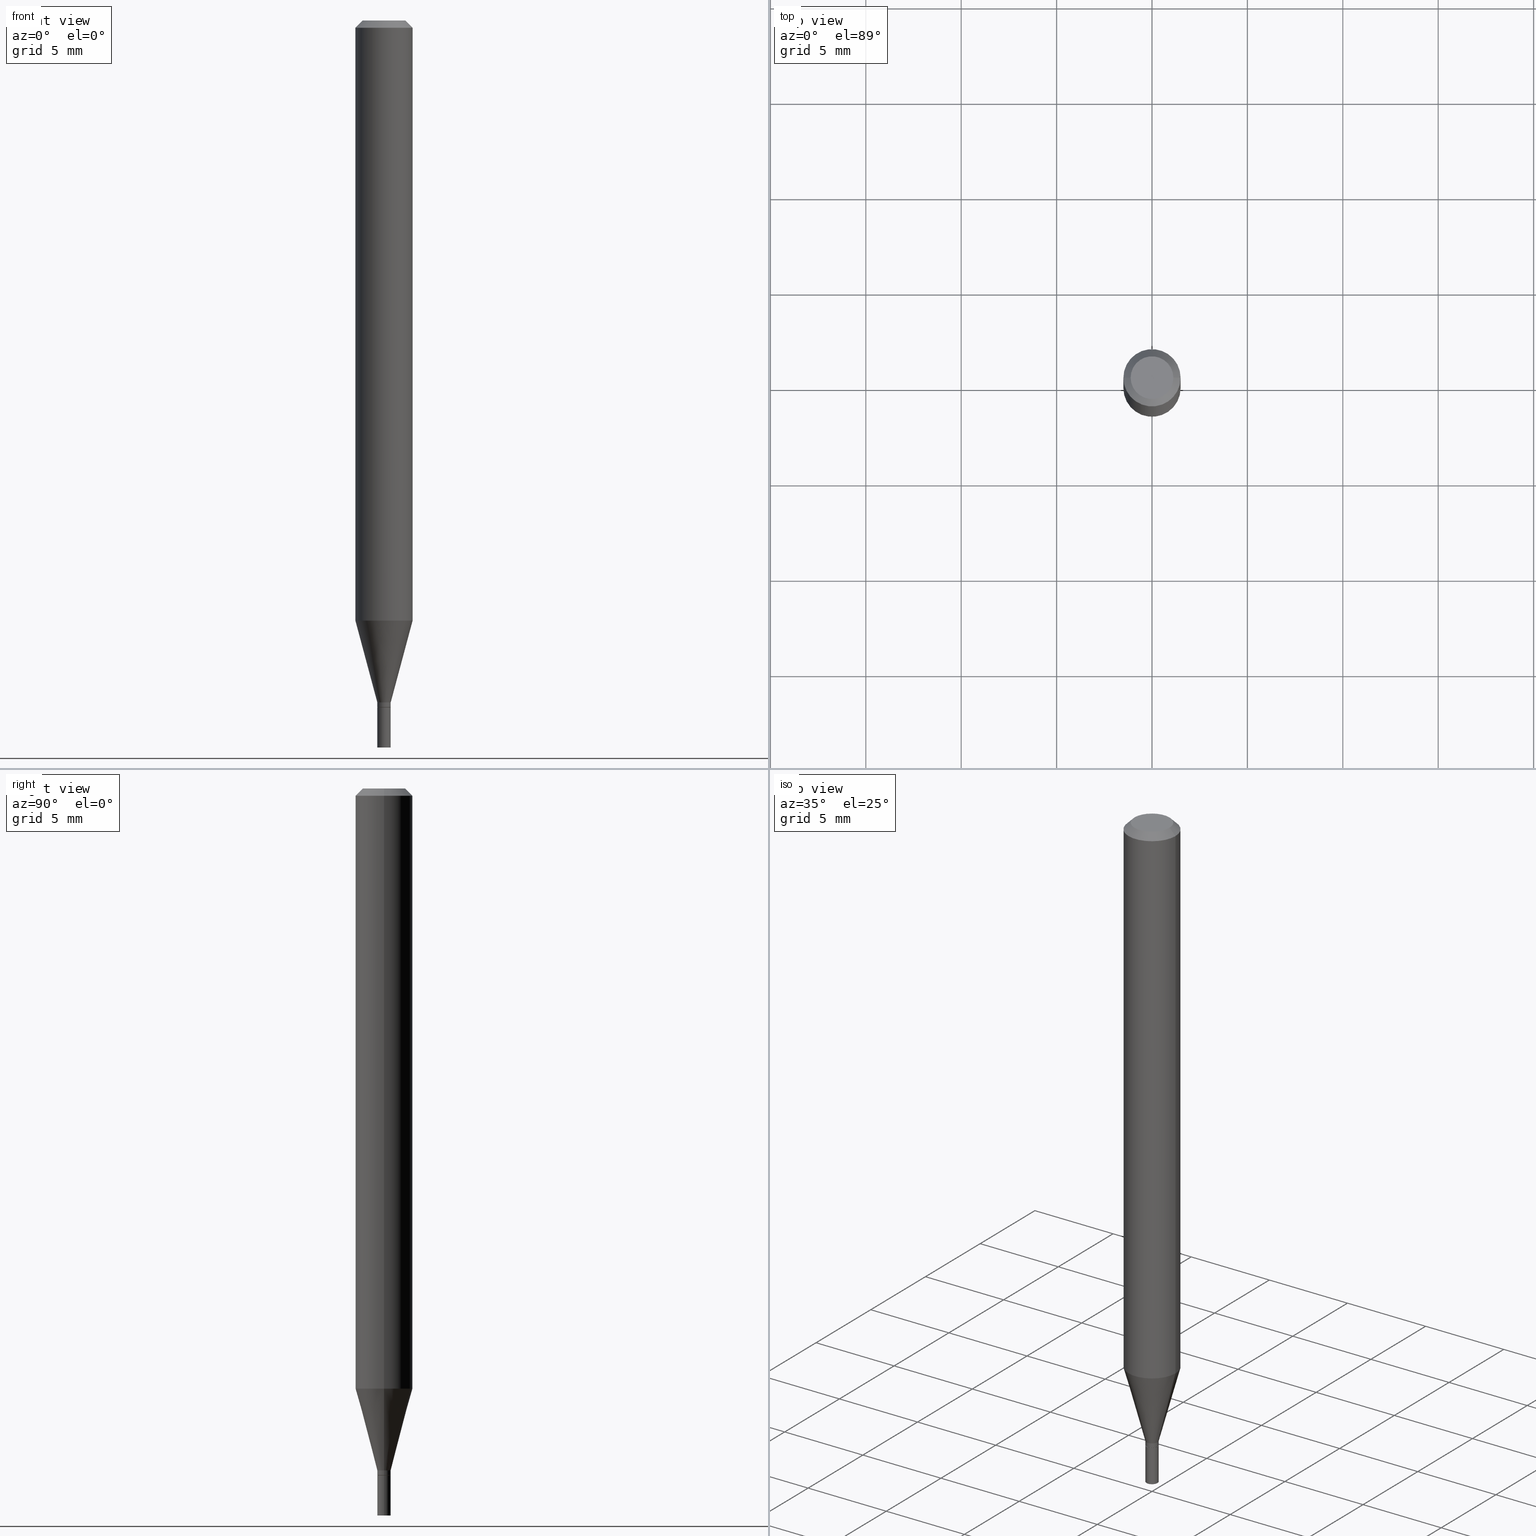
[diagram: canonical four-view strip — front | top / right | iso, engineering-drawing reading convention]
A machine part, canonical four-view strip (front | top / right | iso — engineering-drawing reading convention). The complete STEP part file that produces these views, byte-faithful:
ISO-10303-21;
HEADER;
FILE_DESCRIPTION (( 'STEP AP203' ),
    '1' );
FILE_NAME ('02354.STEP',
    '2024-03-18T20:13:08',
    ( '' ),
    ( '' ),
    'SwSTEP 2.0',
    'SolidWorks 2023',
    '' );
FILE_SCHEMA (( 'CONFIG_CONTROL_DESIGN' ));
ENDSEC;

DATA;
#1 = APPROVAL_STATUS ( 'not_yet_approved' ) ;
#2 = CC_DESIGN_DATE_AND_TIME_ASSIGNMENT ( #345, #303, ( #188 ) ) ;
#3 = CIRCLE ( 'NONE', #176, 0.01380000000000019232 ) ;
#4 = LOCAL_TIME ( 16, 13, 8.000000000000000000, #155 ) ;
#5 = CARTESIAN_POINT ( 'NONE',  ( 0.000000000000000000, 0.000000000000000000, 0.000000000000000000 ) ) ;
#6 = DATE_AND_TIME ( #330, #77 ) ;
#7 = CARTESIAN_POINT ( 'NONE',  ( 0.01329999999999999932, -5.041349905155618377E-15, -1.417300000000000226 ) ) ;
#8 = CARTESIAN_POINT ( 'NONE',  ( 3.465962939006194880E-29, -4.948476501542391231E-15, -1.417300000000000226 ) ) ;
#9 = CONICAL_SURFACE ( 'NONE', #369, 0.01329999999999999932, 0.7853981633974739252 ) ;
#10 = VERTEX_POINT ( 'NONE', #284 ) ;
#11 = ORIENTED_EDGE ( 'NONE', *, *, #148, .F. ) ;
#12 = SECURITY_CLASSIFICATION_LEVEL ( 'unclassified' ) ;
#13 = EDGE_CURVE ( 'NONE', #451, #388, #288, .T. ) ;
#14 = VERTEX_POINT ( 'NONE', #352 ) ;
#15 = COORDINATED_UNIVERSAL_TIME_OFFSET ( 5, 0, .BEHIND. ) ;
#16 = CIRCLE ( 'NONE', #313, 0.01379999999999999977 ) ;
#17 = ORIENTED_EDGE ( 'NONE', *, *, #327, .F. ) ;
#18 = EDGE_CURVE ( 'NONE', #451, #10, #421, .T. ) ;
#19 = FACE_OUTER_BOUND ( 'NONE', #449, .T. ) ;
#20 = CIRCLE ( 'NONE', #39, 0.01329999999999999932 ) ;
#21 = CARTESIAN_POINT ( 'NONE',  ( -2.672865154728371978E-45, 3.816143058285937292E-31, 1.092986812167916054E-16 ) ) ;
#22 = DIRECTION ( 'NONE',  ( 1.000000000000000000, -6.982962677686266711E-15, 4.876176775795936353E-29 ) ) ;
#23 = PLANE ( 'NONE',  #339 ) ;
#24 = ADVANCED_FACE ( 'NONE', ( #95 ), #353, .T. ) ;
#25 = ORIENTED_EDGE ( 'NONE', *, *, #112, .F. ) ;
#26 = CARTESIAN_POINT ( 'NONE',  ( -0.01380000000000019232, -4.814459346217411032E-15, -1.407000000000000028 ) ) ;
#27 = ORIENTED_EDGE ( 'NONE', *, *, #109, .F. ) ;
#28 = EDGE_CURVE ( 'NONE', #163, #192, #131, .T. ) ;
#29 = AXIS2_PLACEMENT_3D ( 'NONE', #175, #91, #279 ) ;
#30 = CIRCLE ( 'NONE', #96, 0.01379999999999992344 ) ;
#31 = CC_DESIGN_APPROVAL ( #42, ( #409 ) ) ;
#32 = CARTESIAN_POINT ( 'NONE',  ( -0.01380000000000005875, 9.805489753489424308E-17, -6.788130424551798647E-31 ) ) ;
#33 = FACE_OUTER_BOUND ( 'NONE', #90, .T. ) ;
#34 = LINE ( 'NONE', #437, #152 ) ;
#35 = CARTESIAN_POINT ( 'NONE',  ( 3.464740204603102639E-29, -4.946730760872969728E-15, -1.416800000000000281 ) ) ;
#36 = PERSON_AND_ORGANIZATION ( #248, #255 ) ;
#37 = CALENDAR_DATE ( 2024, 18, 3 ) ;
#38 = FACE_OUTER_BOUND ( 'NONE', #245, .T. ) ;
#39 = AXIS2_PLACEMENT_3D ( 'NONE', #334, #328, #408 ) ;
#40 = CARTESIAN_POINT ( 'NONE',  ( 0.01380000000000019232, -5.008879128704377621E-15, -1.407000000000000028 ) ) ;
#41 = APPLICATION_PROTOCOL_DEFINITION ( 'international standard', 'config_control_design', 1994, #366 ) ;
#42 = APPROVAL ( #1, 'UNSPECIFIED' ) ;
#43 = ORIENTED_EDGE ( 'NONE', *, *, #223, .F. ) ;
#44 = DATE_AND_TIME ( #341, #460 ) ;
#45 = VECTOR ( 'NONE', #178, 39.37007874015748143 ) ;
#46 = ADVANCED_FACE ( 'NONE', ( #458 ), #331, .T. ) ;
#47 = ORIENTED_EDGE ( 'NONE', *, *, #86, .T. ) ;
#48 = ORIENTED_EDGE ( 'NONE', *, *, #18, .F. ) ;
#49 = PERSON_AND_ORGANIZATION_ROLE ( 'creator' ) ;
#50 = PRODUCT_RELATED_PRODUCT_CATEGORY ( 'detail', '', ( #293 ) ) ;
#51 = ORIENTED_EDGE ( 'NONE', *, *, #305, .T. ) ;
#52 = AXIS2_PLACEMENT_3D ( 'NONE', #314, #171, #174 ) ;
#53 = APPROVAL_PERSON_ORGANIZATION ( #222, #70, #336 ) ;
#54 = ORIENTED_EDGE ( 'NONE', *, *, #13, .F. ) ;
#55 = ADVANCED_FACE ( 'NONE', ( #456 ), #127, .T. ) ;
#56 = DIRECTION ( 'NONE',  ( 1.000000000000000000, -6.982962677686234367E-15, 0.000000000000000000 ) ) ;
#57 = CARTESIAN_POINT ( 'NONE',  ( 0.000000000000000000, 0.000000000000000000, 0.000000000000000000 ) ) ;
#58 = AXIS2_PLACEMENT_3D ( 'NONE', #57, #207, #22 ) ;
#59 = AXIS2_PLACEMENT_3D ( 'NONE', #21, #129, #98 ) ;
#60 = DIRECTION ( 'NONE',  ( 1.000000000000000000, -6.982962677686265922E-15, 4.876176775795935793E-29 ) ) ;
#61 = DIRECTION ( 'NONE',  ( -2.445468806185136597E-29, 3.491481338843145583E-15, 1.000000000000000000 ) ) ;
#62 = UNCERTAINTY_MEASURE_WITH_UNIT (LENGTH_MEASURE( 1.000000000000000082E-05 ), #259, 'distance_accuracy_value', 'NONE');
#63 = CARTESIAN_POINT ( 'NONE',  ( 3.465962939006194880E-29, -4.948476501542391231E-15, -1.417300000000000226 ) ) ;
#64 = ORIENTED_EDGE ( 'NONE', *, *, #204, .F. ) ;
#65 = LINE ( 'NONE', #94, #126 ) ;
#66 = LINE ( 'NONE', #213, #45 ) ;
#67 = AXIS2_PLACEMENT_3D ( 'NONE', #212, #422, #316 ) ;
#68 = DIRECTION ( 'NONE',  ( 1.000000000000000000, -6.982962677686234367E-15, 0.000000000000000000 ) ) ;
#69 = DIRECTION ( 'NONE',  ( 1.000000000000000000, -6.982962677686265922E-15, 4.876176775795935793E-29 ) ) ;
#70 = APPROVAL ( #370, 'UNSPECIFIED' ) ;
#71 =( LENGTH_UNIT ( ) NAMED_UNIT ( * ) SI_UNIT ( $, .METRE. ) );
#72 = DIRECTION ( 'NONE',  ( 1.000000000000000000, -6.982962677686266711E-15, 0.000000000000000000 ) ) ;
#73 = FACE_OUTER_BOUND ( 'NONE', #234, .T. ) ;
#74 = AXIS2_PLACEMENT_3D ( 'NONE', #133, #61, #281 ) ;
#75 = VECTOR ( 'NONE', #247, 39.37007874015748143 ) ;
#76 = APPROVAL_ROLE ( '' ) ;
#77 = LOCAL_TIME ( 16, 13, 8.000000000000000000, #180 ) ;
#78 = DIRECTION ( 'NONE',  ( 1.000000000000000000, -6.982962677686266711E-15, 0.000000000000000000 ) ) ;
#79 = DIRECTION ( 'NONE',  ( -2.445468806185136597E-29, 3.491481338843145583E-15, 1.000000000000000000 ) ) ;
#80 = VECTOR ( 'NONE', #425, 39.37007874015748143 ) ;
#81 = CONICAL_SURFACE ( 'NONE', #380, 0.05904999999999999832, 0.7853981633974447263 ) ;
#82 = CC_DESIGN_PERSON_AND_ORGANIZATION_ASSIGNMENT ( #120, #193, ( #188 ) ) ;
#83 = ORIENTED_EDGE ( 'NONE', *, *, #355, .T. ) ;
#84 = ORIENTED_EDGE ( 'NONE', *, *, #172, .F. ) ;
#85 = ORIENTED_EDGE ( 'NONE', *, *, #376, .F. ) ;
#86 = EDGE_CURVE ( 'NONE', #14, #124, #173, .T. ) ;
#87 = ORIENTED_EDGE ( 'NONE', *, *, #148, .T. ) ;
#88 = VECTOR ( 'NONE', #102, 39.37007874015748143 ) ;
#89 = CONICAL_SURFACE ( 'NONE', #299, 0.01380000000000019232, 0.2617993877991501850 ) ;
#90 = EDGE_LOOP ( 'NONE', ( #170, #442 ) ) ;
#91 = DIRECTION ( 'NONE',  ( -2.445468806185136597E-29, 3.491481338843145583E-15, 1.000000000000000000 ) ) ;
#92 = FACE_OUTER_BOUND ( 'NONE', #410, .T. ) ;
#93 = DIRECTION ( 'NONE',  ( 1.000000000000000000, -6.982962677686265922E-15, 4.876176775795935793E-29 ) ) ;
#94 = CARTESIAN_POINT ( 'NONE',  ( -0.01379999999999999977, 9.805489753489382399E-17, -6.788130424551770621E-31 ) ) ;
#95 = FACE_OUTER_BOUND ( 'NONE', #298, .T. ) ;
#96 = AXIS2_PLACEMENT_3D ( 'NONE', #257, #262, #372 ) ;
#97 = CC_DESIGN_APPROVAL ( #304, ( #188 ) ) ;
#98 = DIRECTION ( 'NONE',  ( 1.000000000000000000, -6.982962677686265922E-15, 4.888540261209747396E-29 ) ) ;
#99 = CARTESIAN_POINT ( 'NONE',  ( 0.01329999999999999932, -5.041349905155618377E-15, -1.417300000000000226 ) ) ;
#100 = ADVANCED_FACE ( 'NONE', ( #199 ), #351, .T. ) ;
#101 = CARTESIAN_POINT ( 'NONE',  ( -0.05904999999999999832, -3.903313803087555062E-15, -1.238124700957509594 ) ) ;
#102 = DIRECTION ( 'NONE',  ( -2.445468806185136877E-29, 3.491481338843145188E-15, 1.000000000000000000 ) ) ;
#103 = DIRECTION ( 'NONE',  ( -2.445468806185136597E-29, 3.491481338843145583E-15, 1.000000000000000000 ) ) ;
#104 = CYLINDRICAL_SURFACE ( 'NONE', #402, 0.05904999999999999832 ) ;
#105 = CLOSED_SHELL ( 'NONE', ( #130, #191, #274, #216 ) ) ;
#106 = CIRCLE ( 'NONE', #59, 0.04404999999999999888 ) ;
#107 = APPLICATION_PROTOCOL_DEFINITION ( 'international standard', 'config_control_design', 1994, #240 ) ;
#108 = DIRECTION ( 'NONE',  ( -1.000000000000000000, 6.982962677686266711E-15, 0.000000000000000000 ) ) ;
#109 = EDGE_CURVE ( 'NONE', #357, #272, #393, .T. ) ;
#110 = APPROVAL_DATE_TIME ( #6, #42 ) ;
#111 = PLANE ( 'NONE',  #333 ) ;
#112 = EDGE_CURVE ( 'NONE', #209, #163, #428, .T. ) ;
#113 = LENGTH_MEASURE_WITH_UNIT ( LENGTH_MEASURE( 0.02539999999999999897 ), #71 );
#114 = DIRECTION ( 'NONE',  ( -2.445468806185136597E-29, 3.491481338843145583E-15, 1.000000000000000000 ) ) ;
#115 = AXIS2_PLACEMENT_3D ( 'NONE', #433, #181, #150 ) ;
#116 = CARTESIAN_POINT ( 'NONE',  ( 0.05904999999999999832, -4.735233234671267897E-15, -1.238124700957509594 ) ) ;
#117 = EDGE_LOOP ( 'NONE', ( #134, #346, #315, #154 ) ) ;
#118 = CC_DESIGN_PERSON_AND_ORGANIZATION_ASSIGNMENT ( #225, #347, ( #145 ) ) ;
#119 = ORIENTED_EDGE ( 'NONE', *, *, #436, .F. ) ;
#120 = PERSON_AND_ORGANIZATION ( #248, #255 ) ;
#121 = ADVANCED_BREP_SHAPE_REPRESENTATION ( '02354', ( #444, #128, #405 ), #348 ) ;
#122 = ORIENTED_EDGE ( 'NONE', *, *, #342, .T. ) ;
#123 = ADVANCED_FACE ( 'NONE', ( #38 ), #104, .T. ) ;
#124 = VERTEX_POINT ( 'NONE', #179 ) ;
#125 = ORIENTED_EDGE ( 'NONE', *, *, #223, .T. ) ;
#126 = VECTOR ( 'NONE', #283, 39.37007874015748143 ) ;
#127 = CYLINDRICAL_SURFACE ( 'NONE', #338, 0.01380000000000005875 ) ;
#128 = MANIFOLD_SOLID_BREP ( 'Body-Move/Copy2[2]', #235 ) ;
#129 = DIRECTION ( 'NONE',  ( -2.445468806185136597E-29, 3.491481338843145583E-15, 1.000000000000000000 ) ) ;
#130 = ADVANCED_FACE ( 'NONE', ( #286 ), #260, .T. ) ;
#131 = LINE ( 'NONE', #431, #88 ) ;
#132 = LINE ( 'NONE', #246, #441 ) ;
#133 = CARTESIAN_POINT ( 'NONE',  ( 3.465962939006194880E-29, -4.948476501542391231E-15, -1.417300000000000226 ) ) ;
#134 = ORIENTED_EDGE ( 'NONE', *, *, #342, .F. ) ;
#135 = DIRECTION ( 'NONE',  ( 1.000000000000000000, -6.982962677686267499E-15, 4.876176775795936353E-29 ) ) ;
#136 = ORIENTED_EDGE ( 'NONE', *, *, #412, .F. ) ;
#137 = CC_DESIGN_SECURITY_CLASSIFICATION ( #188, ( #145 ) ) ;
#138 = PLANE ( 'NONE',  #269 ) ;
#139 = CARTESIAN_POINT ( 'NONE',  ( -0.01379999999999992344, -4.848675863338077235E-15, -1.416800000000000281 ) ) ;
#140 = LINE ( 'NONE', #26, #411 ) ;
#141 =( NAMED_UNIT ( * ) PLANE_ANGLE_UNIT ( ) SI_UNIT ( $, .RADIAN. ) );
#142 = FACE_OUTER_BOUND ( 'NONE', #375, .T. ) ;
#143 = AXIS2_PLACEMENT_3D ( 'NONE', #462, #320, #275 ) ;
#144 = AXIS2_PLACEMENT_3D ( 'NONE', #285, #432, #135 ) ;
#145 = PRODUCT_DEFINITION_FORMATION_WITH_SPECIFIED_SOURCE ( 'ANY', '', #293, .NOT_KNOWN. ) ;
#146 = CARTESIAN_POINT ( 'NONE',  ( 0.01380000000000019232, -5.008879128704377621E-15, -1.407000000000000028 ) ) ;
#147 = DIRECTION ( 'NONE',  ( 1.000000000000000000, -6.982962677686267499E-15, 4.876176775795936353E-29 ) ) ;
#148 = EDGE_CURVE ( 'NONE', #124, #10, #196, .T. ) ;
#149 = PERSON_AND_ORGANIZATION ( #248, #255 ) ;
#150 = DIRECTION ( 'NONE',  ( 1.000000000000000000, -6.982962677686265922E-15, 4.888540261209747396E-29 ) ) ;
#151 = COORDINATED_UNIVERSAL_TIME_OFFSET ( 5, 0, .BEHIND. ) ;
#152 = VECTOR ( 'NONE', #226, 39.37007874015748143 ) ;
#153 = DIRECTION ( 'NONE',  ( 1.000000000000000000, -6.982962677686267499E-15, 0.000000000000000000 ) ) ;
#154 = ORIENTED_EDGE ( 'NONE', *, *, #254, .F. ) ;
#155 = COORDINATED_UNIVERSAL_TIME_OFFSET ( 5, 0, .BEHIND. ) ;
#156 = CC_DESIGN_DATE_AND_TIME_ASSIGNMENT ( #295, #439, ( #409 ) ) ;
#157 = DIMENSIONAL_EXPONENTS ( 1.000000000000000000, 0.000000000000000000, 0.000000000000000000, 0.000000000000000000, 0.000000000000000000, 0.000000000000000000, 0.000000000000000000 ) ;
#158 = ORIENTED_EDGE ( 'NONE', *, *, #13, .T. ) ;
#159 = ORIENTED_EDGE ( 'NONE', *, *, #426, .T. ) ;
#160 = SHAPE_DEFINITION_REPRESENTATION ( #218, #121 ) ;
#161 = EDGE_CURVE ( 'NONE', #272, #357, #186, .T. ) ;
#162 = ORIENTED_EDGE ( 'NONE', *, *, #242, .F. ) ;
#163 = VERTEX_POINT ( 'NONE', #217 ) ;
#164 = DIRECTION ( 'NONE',  ( -2.445468806185136597E-29, 3.491481338843145583E-15, 1.000000000000000000 ) ) ;
#165 = DIRECTION ( 'NONE',  ( -2.438088387897960049E-29, 3.491481338843145188E-15, 1.000000000000000000 ) ) ;
#166 = VECTOR ( 'NONE', #321, 39.37007874015748143 ) ;
#167 = VERTEX_POINT ( 'NONE', #368 ) ;
#168 = CARTESIAN_POINT ( 'NONE',  ( 3.440774610302487541E-29, -4.912514243752305891E-15, -1.407000000000000028 ) ) ;
#169 = ORIENTED_EDGE ( 'NONE', *, *, #308, .F. ) ;
#170 = ORIENTED_EDGE ( 'NONE', *, *, #109, .T. ) ;
#171 = DIRECTION ( 'NONE',  ( -2.445468806185136597E-29, 3.491481338843145583E-15, 1.000000000000000000 ) ) ;
#172 = EDGE_CURVE ( 'NONE', #189, #14, #253, .T. ) ;
#173 = LINE ( 'NONE', #241, #220 ) ;
#174 = DIRECTION ( 'NONE',  ( 1.000000000000000000, -6.982962677686273021E-15, 0.000000000000000000 ) ) ;
#175 = CARTESIAN_POINT ( 'NONE',  ( 3.027795334358889940E-29, -4.322889288553894555E-15, -1.238124700957509594 ) ) ;
#176 = AXIS2_PLACEMENT_3D ( 'NONE', #205, #210, #389 ) ;
#177 = DIRECTION ( 'NONE',  ( 2.438088387897960049E-29, -3.491481338843145188E-15, -1.000000000000000000 ) ) ;
#178 = DIRECTION ( 'NONE',  ( 0.7071067811865450192, -7.319954787623246579E-15, -0.7071067811865500152 ) ) ;
#179 = CARTESIAN_POINT ( 'NONE',  ( -0.05904999999999999832, -1.768055268851931719E-15, -0.01499999999999999944 ) ) ;
#180 = COORDINATED_UNIVERSAL_TIME_OFFSET ( 5, 0, .BEHIND. ) ;
#181 = DIRECTION ( 'NONE',  ( -2.445468806185136597E-29, 3.491481338843145583E-15, 1.000000000000000000 ) ) ;
#182 = CONICAL_SURFACE ( 'NONE', #374, 0.01329999999999999932, 0.7853981633974739252 ) ;
#183 = PERSON_AND_ORGANIZATION_ROLE ( 'creator' ) ;
#184 = DIRECTION ( 'NONE',  ( 1.000000000000000000, -6.982962677686234367E-15, 0.000000000000000000 ) ) ;
#185 = EDGE_LOOP ( 'NONE', ( #158, #211, #43, #48 ) ) ;
#186 = CIRCLE ( 'NONE', #452, 0.01379999999999999977 ) ;
#187 = COORDINATED_UNIVERSAL_TIME_OFFSET ( 5, 0, .BEHIND. ) ;
#188 = SECURITY_CLASSIFICATION ( '', '', #12 ) ;
#189 = VERTEX_POINT ( 'NONE', #435 ) ;
#190 = PERSON_AND_ORGANIZATION ( #248, #255 ) ;
#191 = ADVANCED_FACE ( 'NONE', ( #73 ), #396, .F. ) ;
#192 = VERTEX_POINT ( 'NONE', #40 ) ;
#193 = PERSON_AND_ORGANIZATION_ROLE ( 'classification_officer' ) ;
#194 = ADVANCED_FACE ( 'NONE', ( #364 ), #89, .T. ) ;
#195 = ORIENTED_EDGE ( 'NONE', *, *, #229, .T. ) ;
#196 = CIRCLE ( 'NONE', #395, 0.05904999999999999832 ) ;
#197 = LOCAL_TIME ( 16, 13, 8.000000000000000000, #187 ) ;
#198 = ORIENTED_EDGE ( 'NONE', *, *, #412, .T. ) ;
#199 = FACE_OUTER_BOUND ( 'NONE', #185, .T. ) ;
#200 = ADVANCED_FACE ( 'NONE', ( #142 ), #81, .T. ) ;
#201 = ORIENTED_EDGE ( 'NONE', *, *, #86, .F. ) ;
#202 = EDGE_LOOP ( 'NONE', ( #407, #198, #350, #64 ) ) ;
#203 = CC_DESIGN_PERSON_AND_ORGANIZATION_ASSIGNMENT ( #190, #49, ( #145 ) ) ;
#204 = EDGE_CURVE ( 'NONE', #265, #163, #291, .T. ) ;
#205 = CARTESIAN_POINT ( 'NONE',  ( 3.440774610302487541E-29, -4.912514243752305891E-15, -1.407000000000000028 ) ) ;
#206 = CIRCLE ( 'NONE', #52, 0.05904999999999999832 ) ;
#207 = DIRECTION ( 'NONE',  ( -2.445468806185136597E-29, 3.491481338843145583E-15, 1.000000000000000000 ) ) ;
#208 = CARTESIAN_POINT ( 'NONE',  ( 3.465962939006194880E-29, -4.948476501542391231E-15, -1.417300000000000226 ) ) ;
#209 = VERTEX_POINT ( 'NONE', #7 ) ;
#210 = DIRECTION ( 'NONE',  ( -2.445468806185136597E-29, 3.491481338843145583E-15, 1.000000000000000000 ) ) ;
#211 = ORIENTED_EDGE ( 'NONE', *, *, #308, .T. ) ;
#212 = CARTESIAN_POINT ( 'NONE',  ( 3.465962939006194880E-29, -4.948476501542391231E-15, -1.417300000000000226 ) ) ;
#213 = CARTESIAN_POINT ( 'NONE',  ( 0.05904999999999999832, -4.574846268510561447E-16, -0.01499999999999999944 ) ) ;
#214 = CARTESIAN_POINT ( 'NONE',  ( 0.000000000000000000, 0.000000000000000000, 0.000000000000000000 ) ) ;
#215 = CARTESIAN_POINT ( 'NONE',  ( 3.576687321579069994E-29, -5.368277968210015545E-15, -1.500000000000000222 ) ) ;
#216 = ADVANCED_FACE ( 'NONE', ( #33 ), #111, .F. ) ;
#217 = CARTESIAN_POINT ( 'NONE',  ( 0.01379999999999992344, -5.043095645825039880E-15, -1.416800000000000281 ) ) ;
#218 = PRODUCT_DEFINITION_SHAPE ( 'NONE', 'NONE',  #409 ) ;
#219 = DIRECTION ( 'NONE',  ( 2.438088387897960049E-29, -3.491481338843145188E-15, -1.000000000000000000 ) ) ;
#220 = VECTOR ( 'NONE', #385, 39.37007874015748143 ) ;
#221 = AXIS2_PLACEMENT_3D ( 'NONE', #35, #401, #256 ) ;
#222 = PERSON_AND_ORGANIZATION ( #248, #255 ) ;
#223 = EDGE_CURVE ( 'NONE', #10, #124, #386, .T. ) ;
#224 = DIRECTION ( 'NONE',  ( -2.445468806185136597E-29, 3.491481338843145583E-15, 1.000000000000000000 ) ) ;
#225 = PERSON_AND_ORGANIZATION ( #248, #255 ) ;
#226 = DIRECTION ( 'NONE',  ( -2.445468806185136877E-29, 3.491481338843145188E-15, 1.000000000000000000 ) ) ;
#227 = CC_DESIGN_PERSON_AND_ORGANIZATION_ASSIGNMENT ( #149, #287, ( #293 ) ) ;
#228 = CALENDAR_DATE ( 2024, 18, 3 ) ;
#229 = EDGE_CURVE ( 'NONE', #189, #10, #66, .T. ) ;
#230 = ORIENTED_EDGE ( 'NONE', *, *, #436, .T. ) ;
#231 = CC_DESIGN_APPROVAL ( #70, ( #145 ) ) ;
#232 = ORIENTED_EDGE ( 'NONE', *, *, #251, .F. ) ;
#233 = EDGE_LOOP ( 'NONE', ( #51, #450, #54, #302 ) ) ;
#234 = EDGE_LOOP ( 'NONE', ( #344, #232 ) ) ;
#235 = CLOSED_SHELL ( 'NONE', ( #399, #459, #200, #100, #46, #194, #123, #24, #311, #382, #383, #55 ) ) ;
#236 = AXIS2_PLACEMENT_3D ( 'NONE', #290, #252, #147 ) ;
#237 = ORIENTED_EDGE ( 'NONE', *, *, #305, .F. ) ;
#238 = VERTEX_POINT ( 'NONE', #326 ) ;
#239 = CARTESIAN_POINT ( 'NONE',  ( -0.05904999999999999832, 4.195754854663391478E-16, -2.904631170795521892E-30 ) ) ;
#240 = APPLICATION_CONTEXT ( 'configuration controlled 3d designs of mechanical parts and assemblies' ) ;
#241 = CARTESIAN_POINT ( 'NONE',  ( -0.05904999999999999832, 3.599717260347268549E-16, -0.01499999999999999944 ) ) ;
#242 = EDGE_CURVE ( 'NONE', #413, #388, #140, .T. ) ;
#243 = FACE_OUTER_BOUND ( 'NONE', #202, .T. ) ;
#244 = AXIS2_PLACEMENT_3D ( 'NONE', #457, #453, #68 ) ;
#245 = EDGE_LOOP ( 'NONE', ( #169, #416, #306, #11 ) ) ;
#246 = CARTESIAN_POINT ( 'NONE',  ( -0.01329999999999999932, -4.853974317686298059E-15, -1.417300000000000226 ) ) ;
#247 = DIRECTION ( 'NONE',  ( 0.7071067811865656694, -2.468850131082446387E-15, 0.7071067811865294761 ) ) ;
#248 = PERSON ( 'UNSPECIFIED', 'UNSPECIFIED', 'UNSPECIFIED', ('UNSPECIFIED'), ('UNSPECIFIED'), ('UNSPECIFIED') ) ;
#249 = DIRECTION ( 'NONE',  ( -0.2588190451025214611, 5.211531920934550253E-15, 0.9659258262890679791 ) ) ;
#250 = CYLINDRICAL_SURFACE ( 'NONE', #447, 0.01380000000000005875 ) ;
#251 = EDGE_CURVE ( 'NONE', #167, #238, #434, .T. ) ;
#252 = DIRECTION ( 'NONE',  ( -2.445468806185136597E-29, 3.491481338843145583E-15, 1.000000000000000000 ) ) ;
#253 = CIRCLE ( 'NONE', #115, 0.04404999999999999888 ) ;
#254 = EDGE_CURVE ( 'NONE', #413, #192, #403, .T. ) ;
#255 = ORGANIZATION ( 'UNSPECIFIED', 'UNSPECIFIED', '' ) ;
#256 = DIRECTION ( 'NONE',  ( 1.000000000000000000, -6.982962677686273021E-15, 0.000000000000000000 ) ) ;
#257 = CARTESIAN_POINT ( 'NONE',  ( 3.464740204603102639E-29, -4.946730760872969728E-15, -1.416800000000000281 ) ) ;
#258 = CARTESIAN_POINT ( 'NONE',  ( 9.636488495210514582E-17, 0.01379999999999505060, -1.417300000000000226 ) ) ;
#259 =( CONVERSION_BASED_UNIT ( 'INCH', #113 ) LENGTH_UNIT ( ) NAMED_UNIT ( #157 ) );
#260 = CYLINDRICAL_SURFACE ( 'NONE', #236, 0.01379999999999999977 ) ;
#261 = VECTOR ( 'NONE', #280, 39.37007874015748143 ) ;
#262 = DIRECTION ( 'NONE',  ( -2.445468806185136597E-29, 3.491481338843145583E-15, 1.000000000000000000 ) ) ;
#263 = DIRECTION ( 'NONE',  ( 1.000000000000000000, 0.000000000000000000, 0.000000000000000000 ) ) ;
#264 = DESIGN_CONTEXT ( 'detailed design', #240, 'design' ) ;
#265 = VERTEX_POINT ( 'NONE', #139 ) ;
#266 = EDGE_CURVE ( 'NONE', #238, #167, #16, .T. ) ;
#267 = VERTEX_POINT ( 'NONE', #391 ) ;
#268 = APPROVAL_ROLE ( '' ) ;
#269 = AXIS2_PLACEMENT_3D ( 'NONE', #356, #177, #319 ) ;
#270 = ORIENTED_EDGE ( 'NONE', *, *, #254, .T. ) ;
#271 = ORIENTED_EDGE ( 'NONE', *, *, #426, .F. ) ;
#272 = VERTEX_POINT ( 'NONE', #394 ) ;
#273 = AXIS2_PLACEMENT_3D ( 'NONE', #168, #361, #427 ) ;
#274 = ADVANCED_FACE ( 'NONE', ( #358 ), #276, .T. ) ;
#275 = DIRECTION ( 'NONE',  ( -1.000000000000000000, 6.982962677686266711E-15, 0.000000000000000000 ) ) ;
#276 = CYLINDRICAL_SURFACE ( 'NONE', #144, 0.01379999999999999977 ) ;
#277 = CARTESIAN_POINT ( 'NONE',  ( 0.000000000000000000, 0.000000000000000000, 0.000000000000000000 ) ) ;
#278 = DIRECTION ( 'NONE',  ( -0.7071067811865656694, 7.493145998870420424E-15, 0.7071067811865294761 ) ) ;
#279 = DIRECTION ( 'NONE',  ( 1.000000000000000000, -6.982962677686273021E-15, 0.000000000000000000 ) ) ;
#280 = DIRECTION ( 'NONE',  ( -2.445468806185136877E-29, 3.491481338843145188E-15, 1.000000000000000000 ) ) ;
#281 = DIRECTION ( 'NONE',  ( 1.000000000000000000, -6.982962677686234367E-15, 0.000000000000000000 ) ) ;
#282 = APPROVAL_PERSON_ORGANIZATION ( #36, #42, #76 ) ;
#283 = DIRECTION ( 'NONE',  ( -2.445468806185136877E-29, 3.491481338843145188E-15, 1.000000000000000000 ) ) ;
#284 = CARTESIAN_POINT ( 'NONE',  ( 0.05904999999999999832, -4.647161662000212105E-16, -0.01499999999999999944 ) ) ;
#285 = CARTESIAN_POINT ( 'NONE',  ( 0.000000000000000000, 0.000000000000000000, 0.000000000000000000 ) ) ;
#286 = FACE_OUTER_BOUND ( 'NONE', #343, .T. ) ;
#287 = PERSON_AND_ORGANIZATION_ROLE ( 'design_owner' ) ;
#288 = CIRCLE ( 'NONE', #29, 0.05904999999999999832 ) ;
#289 = EDGE_CURVE ( 'NONE', #388, #451, #206, .T. ) ;
#290 = CARTESIAN_POINT ( 'NONE',  ( 0.000000000000000000, 0.000000000000000000, 0.000000000000000000 ) ) ;
#291 = CIRCLE ( 'NONE', #221, 0.01379999999999992344 ) ;
#292 = PERSON_AND_ORGANIZATION ( #248, #255 ) ;
#293 = PRODUCT ( '02354', '02354', '', ( #363 ) ) ;
#294 = DIRECTION ( 'NONE',  ( -2.445468806185136597E-29, 3.491481338843145583E-15, 1.000000000000000000 ) ) ;
#295 = DATE_AND_TIME ( #400, #323 ) ;
#296 = CARTESIAN_POINT ( 'NONE',  ( 3.668203209277705088E-31, -5.237222008264718399E-17, -0.01499999999999999944 ) ) ;
#297 = DIRECTION ( 'NONE',  ( 0.2588190451025214611, 1.565188264969620982E-15, 0.9659258262890679791 ) ) ;
#298 = EDGE_LOOP ( 'NONE', ( #415, #301, #47, #87 ) ) ;
#299 = AXIS2_PLACEMENT_3D ( 'NONE', #335, #367, #404 ) ;
#300 =( NAMED_UNIT ( * ) SI_UNIT ( $, .STERADIAN. ) SOLID_ANGLE_UNIT ( ) );
#301 = ORIENTED_EDGE ( 'NONE', *, *, #317, .F. ) ;
#302 = ORIENTED_EDGE ( 'NONE', *, *, #454, .F. ) ;
#303 = DATE_TIME_ROLE ( 'classification_date' ) ;
#304 = APPROVAL ( #371, 'UNSPECIFIED' ) ;
#305 = EDGE_CURVE ( 'NONE', #192, #413, #3, .T. ) ;
#306 = ORIENTED_EDGE ( 'NONE', *, *, #18, .T. ) ;
#307 = CIRCLE ( 'NONE', #67, 0.01329999999999999932 ) ;
#308 = EDGE_CURVE ( 'NONE', #388, #124, #360, .T. ) ;
#309 = ORIENTED_EDGE ( 'NONE', *, *, #161, .F. ) ;
#310 = EDGE_LOOP ( 'NONE', ( #85, #419, #159, #309 ) ) ;
#311 = ADVANCED_FACE ( 'NONE', ( #92 ), #138, .F. ) ;
#312 = ORIENTED_EDGE ( 'NONE', *, *, #327, .T. ) ;
#313 = AXIS2_PLACEMENT_3D ( 'NONE', #424, #384, #56 ) ;
#314 = CARTESIAN_POINT ( 'NONE',  ( 3.027795334358889940E-29, -4.322889288553894555E-15, -1.238124700957509594 ) ) ;
#315 = ORIENTED_EDGE ( 'NONE', *, *, #28, .T. ) ;
#316 = DIRECTION ( 'NONE',  ( 1.000000000000000000, -6.982962677686267499E-15, 0.000000000000000000 ) ) ;
#317 = EDGE_CURVE ( 'NONE', #14, #189, #106, .T. ) ;
#318 = CARTESIAN_POINT ( 'NONE',  ( 3.440774610302487541E-29, -4.912514243752305891E-15, -1.407000000000000028 ) ) ;
#319 = DIRECTION ( 'NONE',  ( -1.000000000000000000, 6.982962677686265922E-15, -4.876176775795935793E-29 ) ) ;
#320 = DIRECTION ( 'NONE',  ( 2.445468806185136597E-29, -3.491481338843145583E-15, -1.000000000000000000 ) ) ;
#321 = DIRECTION ( 'NONE',  ( -2.445468806185136877E-29, 3.491481338843145188E-15, 1.000000000000000000 ) ) ;
#322 = AXIS2_PLACEMENT_3D ( 'NONE', #215, #332, #69 ) ;
#323 = LOCAL_TIME ( 16, 13, 8.000000000000000000, #151 ) ;
#324 = CARTESIAN_POINT ( 'NONE',  ( 0.05904999999999999832, -4.123439461173740327E-16, 2.879382386107500220E-30 ) ) ;
#325 = DIRECTION ( 'NONE',  ( 1.000000000000000000, -6.982962677686265922E-15, 4.876176775795935793E-29 ) ) ;
#326 = CARTESIAN_POINT ( 'NONE',  ( 0.01379999999999999977, -5.333586893216788329E-15, -1.500000000000000222 ) ) ;
#327 = EDGE_CURVE ( 'NONE', #209, #267, #307, .T. ) ;
#328 = DIRECTION ( 'NONE',  ( -2.445468806185136597E-29, 3.491481338843145583E-15, 1.000000000000000000 ) ) ;
#329 = DIRECTION ( 'NONE',  ( 1.000000000000000000, -6.982962677686266711E-15, 4.876176775795936353E-29 ) ) ;
#330 = CALENDAR_DATE ( 2024, 18, 3 ) ;
#331 = CONICAL_SURFACE ( 'NONE', #446, 0.01380000000000019232, 0.2617993877991501850 ) ;
#332 = DIRECTION ( 'NONE',  ( -2.438088387897960049E-29, 3.491481338843145188E-15, 1.000000000000000000 ) ) ;
#333 = AXIS2_PLACEMENT_3D ( 'NONE', #258, #219, #398 ) ;
#334 = CARTESIAN_POINT ( 'NONE',  ( 3.465962939006194880E-29, -4.948476501542391231E-15, -1.417300000000000226 ) ) ;
#335 = CARTESIAN_POINT ( 'NONE',  ( 3.440774610302487541E-29, -4.912514243752305891E-15, -1.407000000000000028 ) ) ;
#336 = APPROVAL_ROLE ( '' ) ;
#337 = DIRECTION ( 'NONE',  ( 0.000000000000000000, 0.000000000000000000, 1.000000000000000000 ) ) ;
#338 = AXIS2_PLACEMENT_3D ( 'NONE', #277, #423, #93 ) ;
#339 = AXIS2_PLACEMENT_3D ( 'NONE', #208, #165, #325 ) ;
#340 = ORIENTED_EDGE ( 'NONE', *, *, #172, .T. ) ;
#341 = CALENDAR_DATE ( 2024, 18, 3 ) ;
#342 = EDGE_CURVE ( 'NONE', #265, #413, #455, .T. ) ;
#343 = EDGE_LOOP ( 'NONE', ( #445, #379, #27, #271 ) ) ;
#344 = ORIENTED_EDGE ( 'NONE', *, *, #266, .F. ) ;
#345 = DATE_AND_TIME ( #228, #4 ) ;
#346 = ORIENTED_EDGE ( 'NONE', *, *, #204, .T. ) ;
#347 = PERSON_AND_ORGANIZATION_ROLE ( 'design_supplier' ) ;
#348 =( GEOMETRIC_REPRESENTATION_CONTEXT ( 3 ) GLOBAL_UNCERTAINTY_ASSIGNED_CONTEXT ( ( #62 ) ) GLOBAL_UNIT_ASSIGNED_CONTEXT ( ( #259, #141, #300 ) ) REPRESENTATION_CONTEXT ( 'NONE', 'WORKASPACE' ) );
#349 = APPROVAL_PERSON_ORGANIZATION ( #373, #304, #268 ) ;
#350 = ORIENTED_EDGE ( 'NONE', *, *, #112, .T. ) ;
#351 = CYLINDRICAL_SURFACE ( 'NONE', #58, 0.05904999999999999832 ) ;
#352 = CARTESIAN_POINT ( 'NONE',  ( -0.04404999999999999888, 3.337856159934036604E-16, 1.092986812167893621E-16 ) ) ;
#353 = CONICAL_SURFACE ( 'NONE', #143, 0.05904999999999999832, 0.7853981633974447263 ) ;
#354 = AXIS2_PLACEMENT_3D ( 'NONE', #440, #114, #78 ) ;
#355 = EDGE_CURVE ( 'NONE', #267, #265, #132, .T. ) ;
#356 = CARTESIAN_POINT ( 'NONE',  ( 3.075995059520799729E-16, 0.04404999999999999888, -9.915041236764475073E-17 ) ) ;
#357 = VERTEX_POINT ( 'NONE', #461 ) ;
#358 = FACE_OUTER_BOUND ( 'NONE', #310, .T. ) ;
#359 = EDGE_LOOP ( 'NONE', ( #162, #270, #390, #377 ) ) ;
#360 = LINE ( 'NONE', #239, #261 ) ;
#361 = DIRECTION ( 'NONE',  ( -2.445468806185136597E-29, 3.491481338843145583E-15, 1.000000000000000000 ) ) ;
#362 = DIRECTION ( 'NONE',  ( -2.445468806185136597E-29, 3.491481338843145583E-15, 1.000000000000000000 ) ) ;
#363 = MECHANICAL_CONTEXT ( 'NONE', #366, 'mechanical' ) ;
#364 = FACE_OUTER_BOUND ( 'NONE', #359, .T. ) ;
#365 = CARTESIAN_POINT ( 'NONE',  ( -0.01380000000000019232, -4.358886574652482258E-15, -1.407000000000000028 ) ) ;
#366 = APPLICATION_CONTEXT ( 'configuration controlled 3d designs of mechanical parts and assemblies' ) ;
#367 = DIRECTION ( 'NONE',  ( -2.445468806185136597E-29, 3.491481338843145583E-15, 1.000000000000000000 ) ) ;
#368 = CARTESIAN_POINT ( 'NONE',  ( -0.01379999999999999977, -4.994794357368660633E-15, -1.500000000000000222 ) ) ;
#369 = AXIS2_PLACEMENT_3D ( 'NONE', #8, #79, #153 ) ;
#370 = APPROVAL_STATUS ( 'not_yet_approved' ) ;
#371 = APPROVAL_STATUS ( 'not_yet_approved' ) ;
#372 = DIRECTION ( 'NONE',  ( 1.000000000000000000, -6.982962677686273021E-15, 0.000000000000000000 ) ) ;
#373 = PERSON_AND_ORGANIZATION ( #248, #255 ) ;
#374 = AXIS2_PLACEMENT_3D ( 'NONE', #63, #103, #430 ) ;
#375 = EDGE_LOOP ( 'NONE', ( #84, #195, #125, #201 ) ) ;
#376 = EDGE_CURVE ( 'NONE', #167, #272, #65, .T. ) ;
#377 = ORIENTED_EDGE ( 'NONE', *, *, #289, .F. ) ;
#378 = EDGE_LOOP ( 'NONE', ( #312, #83, #119, #25 ) ) ;
#379 = ORIENTED_EDGE ( 'NONE', *, *, #376, .T. ) ;
#380 = AXIS2_PLACEMENT_3D ( 'NONE', #296, #438, #108 ) ;
#381 = ORIENTED_EDGE ( 'NONE', *, *, #317, .T. ) ;
#382 = ADVANCED_FACE ( 'NONE', ( #463 ), #23, .F. ) ;
#383 = ADVANCED_FACE ( 'NONE', ( #243 ), #182, .T. ) ;
#384 = DIRECTION ( 'NONE',  ( -2.445468806185136597E-29, 3.491481338843145583E-15, 1.000000000000000000 ) ) ;
#385 = DIRECTION ( 'NONE',  ( -0.7071067811865450192, 2.468850131082230634E-15, -0.7071067811865500152 ) ) ;
#386 = CIRCLE ( 'NONE', #354, 0.05904999999999999832 ) ;
#387 = DIRECTION ( 'NONE',  ( -2.445468806185136597E-29, 3.491481338843145583E-15, 1.000000000000000000 ) ) ;
#388 = VERTEX_POINT ( 'NONE', #101 ) ;
#389 = DIRECTION ( 'NONE',  ( 1.000000000000000000, -6.982962677686277755E-15, 0.000000000000000000 ) ) ;
#390 = ORIENTED_EDGE ( 'NONE', *, *, #454, .T. ) ;
#391 = CARTESIAN_POINT ( 'NONE',  ( -0.01329999999999999932, -4.851325090512187647E-15, -1.417300000000000226 ) ) ;
#392 = DIRECTION ( 'NONE',  ( 1.000000000000000000, -6.982962677686277755E-15, 0.000000000000000000 ) ) ;
#393 = CIRCLE ( 'NONE', #74, 0.01379999999999999977 ) ;
#394 = CARTESIAN_POINT ( 'NONE',  ( -0.01379999999999999977, -4.994794357368660633E-15, -1.417300000000000226 ) ) ;
#395 = AXIS2_PLACEMENT_3D ( 'NONE', #464, #224, #72 ) ;
#396 = PLANE ( 'NONE',  #322 ) ;
#397 = CARTESIAN_POINT ( 'NONE',  ( 0.000000000000000000, 0.000000000000000000, 0.000000000000000000 ) ) ;
#398 = DIRECTION ( 'NONE',  ( -1.000000000000000000, 6.982962677686265922E-15, -4.876176775795935793E-29 ) ) ;
#399 = ADVANCED_FACE ( 'NONE', ( #19 ), #250, .T. ) ;
#400 = CALENDAR_DATE ( 2024, 18, 3 ) ;
#401 = DIRECTION ( 'NONE',  ( -2.445468806185136597E-29, 3.491481338843145583E-15, 1.000000000000000000 ) ) ;
#402 = AXIS2_PLACEMENT_3D ( 'NONE', #5, #294, #329 ) ;
#403 = CIRCLE ( 'NONE', #273, 0.01380000000000019232 ) ;
#404 = DIRECTION ( 'NONE',  ( 1.000000000000000000, -6.982962677686277755E-15, 0.000000000000000000 ) ) ;
#405 = AXIS2_PLACEMENT_3D ( 'NONE', #397, #337, #263 ) ;
#406 = FACE_OUTER_BOUND ( 'NONE', #378, .T. ) ;
#407 = ORIENTED_EDGE ( 'NONE', *, *, #355, .F. ) ;
#408 = DIRECTION ( 'NONE',  ( 1.000000000000000000, -6.982962677686267499E-15, 0.000000000000000000 ) ) ;
#409 = PRODUCT_DEFINITION ( 'UNKNOWN', '', #145, #264 ) ;
#410 = EDGE_LOOP ( 'NONE', ( #381, #340 ) ) ;
#411 = VECTOR ( 'NONE', #249, 39.37007874015748143 ) ;
#412 = EDGE_CURVE ( 'NONE', #267, #209, #20, .T. ) ;
#413 = VERTEX_POINT ( 'NONE', #365 ) ;
#414 = APPROVAL_DATE_TIME ( #44, #304 ) ;
#415 = ORIENTED_EDGE ( 'NONE', *, *, #229, .F. ) ;
#416 = ORIENTED_EDGE ( 'NONE', *, *, #289, .T. ) ;
#417 = DATE_AND_TIME ( #37, #197 ) ;
#418 = ORIENTED_EDGE ( 'NONE', *, *, #28, .F. ) ;
#419 = ORIENTED_EDGE ( 'NONE', *, *, #251, .T. ) ;
#420 = VECTOR ( 'NONE', #297, 39.37007874015748143 ) ;
#421 = LINE ( 'NONE', #324, #80 ) ;
#422 = DIRECTION ( 'NONE',  ( -2.445468806185136597E-29, 3.491481338843145583E-15, 1.000000000000000000 ) ) ;
#423 = DIRECTION ( 'NONE',  ( -2.445468806185136597E-29, 3.491481338843145583E-15, 1.000000000000000000 ) ) ;
#424 = CARTESIAN_POINT ( 'NONE',  ( 3.668203209277704895E-29, -5.237222008264718177E-15, -1.500000000000000222 ) ) ;
#425 = DIRECTION ( 'NONE',  ( -2.445468806185136877E-29, 3.491481338843145188E-15, 1.000000000000000000 ) ) ;
#426 = EDGE_CURVE ( 'NONE', #238, #357, #34, .T. ) ;
#427 = DIRECTION ( 'NONE',  ( 1.000000000000000000, -6.982962677686277755E-15, 0.000000000000000000 ) ) ;
#428 = LINE ( 'NONE', #99, #75 ) ;
#429 = CC_DESIGN_PERSON_AND_ORGANIZATION_ASSIGNMENT ( #292, #183, ( #409 ) ) ;
#430 = DIRECTION ( 'NONE',  ( 1.000000000000000000, -6.982962677686267499E-15, 0.000000000000000000 ) ) ;
#431 = CARTESIAN_POINT ( 'NONE',  ( 0.01380000000000005875, -9.636488495207087967E-17, 6.729123950598420170E-31 ) ) ;
#432 = DIRECTION ( 'NONE',  ( -2.445468806185136597E-29, 3.491481338843145583E-15, 1.000000000000000000 ) ) ;
#433 = CARTESIAN_POINT ( 'NONE',  ( -2.672865154728371978E-45, 3.816143058285937292E-31, 1.092986812167916054E-16 ) ) ;
#434 = CIRCLE ( 'NONE', #244, 0.01379999999999999977 ) ;
#435 = CARTESIAN_POINT ( 'NONE',  ( 0.04404999999999999888, -3.798447818264458600E-16, 1.092986812167939966E-16 ) ) ;
#436 = EDGE_CURVE ( 'NONE', #163, #265, #30, .T. ) ;
#437 = CARTESIAN_POINT ( 'NONE',  ( 0.01379999999999999977, -9.636488495207048524E-17, 6.729123950598392144E-31 ) ) ;
#438 = DIRECTION ( 'NONE',  ( 2.445468806185136597E-29, -3.491481338843145583E-15, -1.000000000000000000 ) ) ;
#439 = DATE_TIME_ROLE ( 'creation_date' ) ;
#440 = CARTESIAN_POINT ( 'NONE',  ( 3.668203209277705088E-31, -5.237222008264718399E-17, -0.01499999999999999944 ) ) ;
#441 = VECTOR ( 'NONE', #278, 39.37007874015748143 ) ;
#442 = ORIENTED_EDGE ( 'NONE', *, *, #161, .T. ) ;
#443 = APPROVAL_DATE_TIME ( #417, #70 ) ;
#444 = MANIFOLD_SOLID_BREP ( 'Body-Move/Copy2[1]', #105 ) ;
#445 = ORIENTED_EDGE ( 'NONE', *, *, #266, .T. ) ;
#446 = AXIS2_PLACEMENT_3D ( 'NONE', #318, #164, #392 ) ;
#447 = AXIS2_PLACEMENT_3D ( 'NONE', #214, #387, #60 ) ;
#448 = EDGE_LOOP ( 'NONE', ( #17, #136 ) ) ;
#449 = EDGE_LOOP ( 'NONE', ( #230, #122, #237, #418 ) ) ;
#450 = ORIENTED_EDGE ( 'NONE', *, *, #242, .T. ) ;
#451 = VERTEX_POINT ( 'NONE', #116 ) ;
#452 = AXIS2_PLACEMENT_3D ( 'NONE', #466, #362, #184 ) ;
#453 = DIRECTION ( 'NONE',  ( -2.445468806185136597E-29, 3.491481338843145583E-15, 1.000000000000000000 ) ) ;
#454 = EDGE_CURVE ( 'NONE', #192, #451, #465, .T. ) ;
#455 = LINE ( 'NONE', #32, #166 ) ;
#456 = FACE_OUTER_BOUND ( 'NONE', #117, .T. ) ;
#457 = CARTESIAN_POINT ( 'NONE',  ( 3.668203209277704895E-29, -5.237222008264718177E-15, -1.500000000000000222 ) ) ;
#458 = FACE_OUTER_BOUND ( 'NONE', #233, .T. ) ;
#459 = ADVANCED_FACE ( 'NONE', ( #406 ), #9, .T. ) ;
#460 = LOCAL_TIME ( 16, 13, 8.000000000000000000, #15 ) ;
#461 = CARTESIAN_POINT ( 'NONE',  ( 0.01379999999999999977, -5.044841386494461384E-15, -1.417300000000000226 ) ) ;
#462 = CARTESIAN_POINT ( 'NONE',  ( 3.668203209277705088E-31, -5.237222008264718399E-17, -0.01499999999999999944 ) ) ;
#463 = FACE_OUTER_BOUND ( 'NONE', #448, .T. ) ;
#464 = CARTESIAN_POINT ( 'NONE',  ( 3.668203209277705088E-31, -5.237222008264718399E-17, -0.01499999999999999944 ) ) ;
#465 = LINE ( 'NONE', #146, #420 ) ;
#466 = CARTESIAN_POINT ( 'NONE',  ( 3.465962939006194880E-29, -4.948476501542391231E-15, -1.417300000000000226 ) ) ;
ENDSEC;
END-ISO-10303-21;
